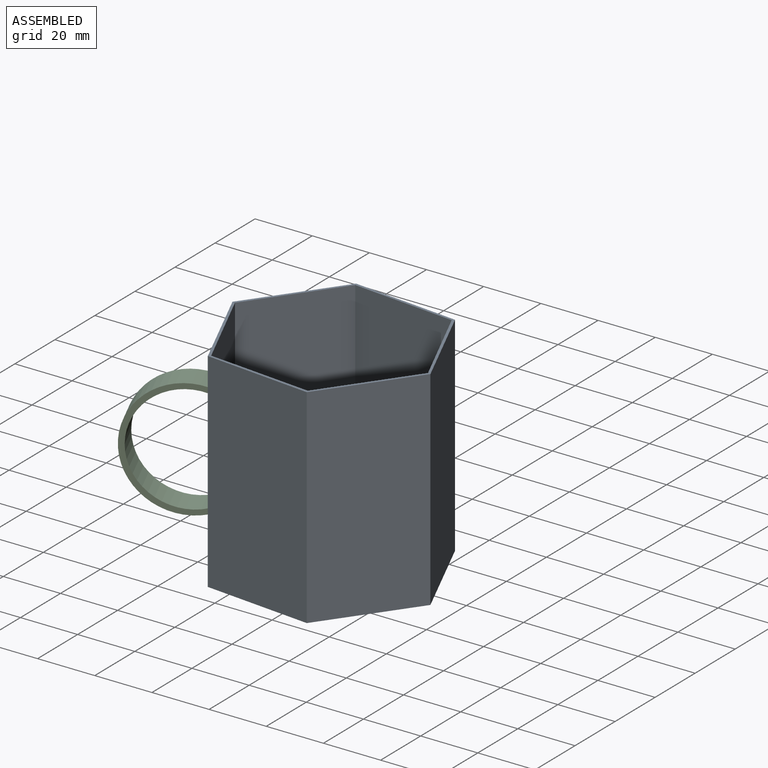
[diagram: assembled view]
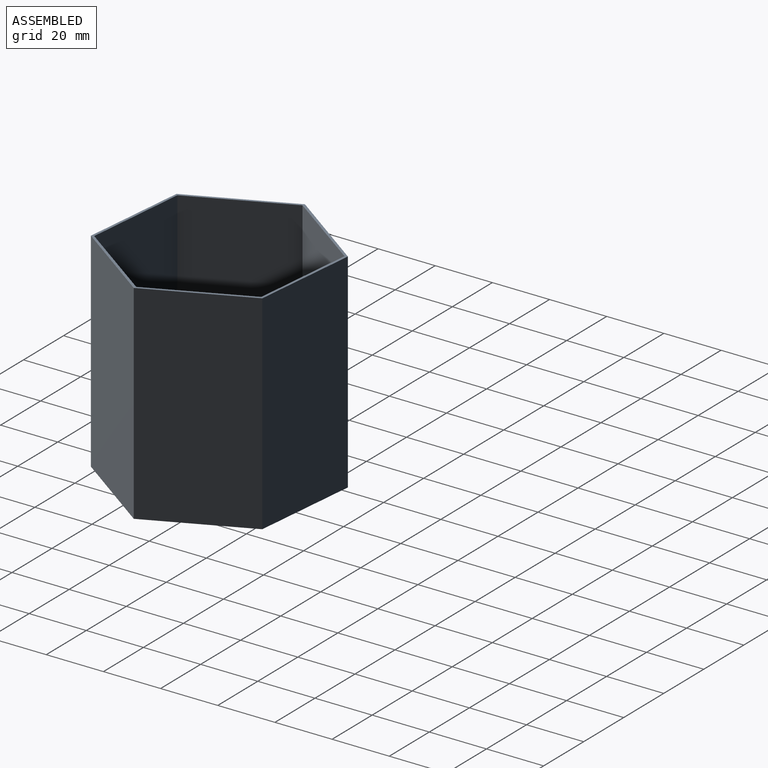
[diagram: assembled view, second angle]
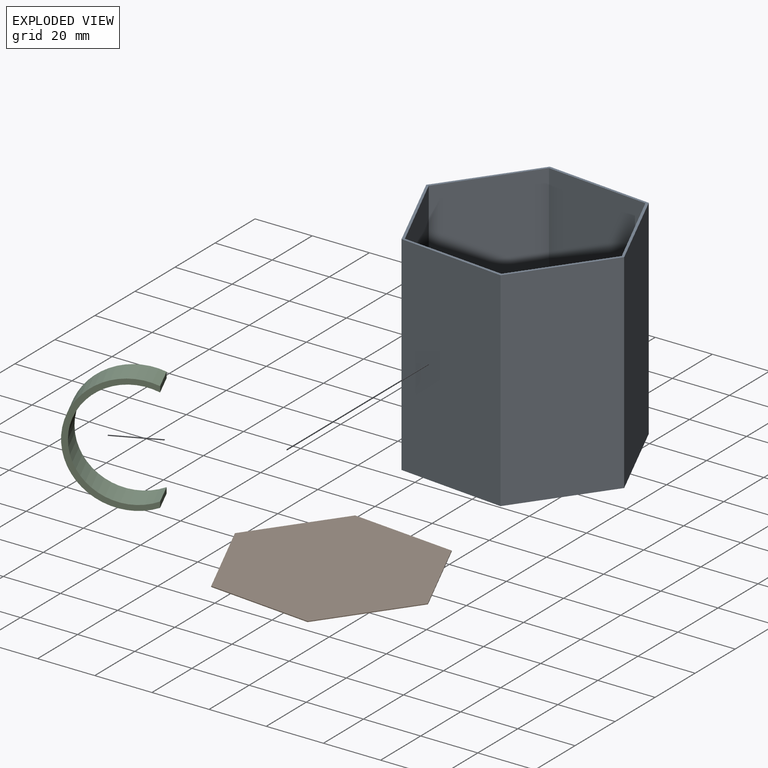
[diagram: exploded view]
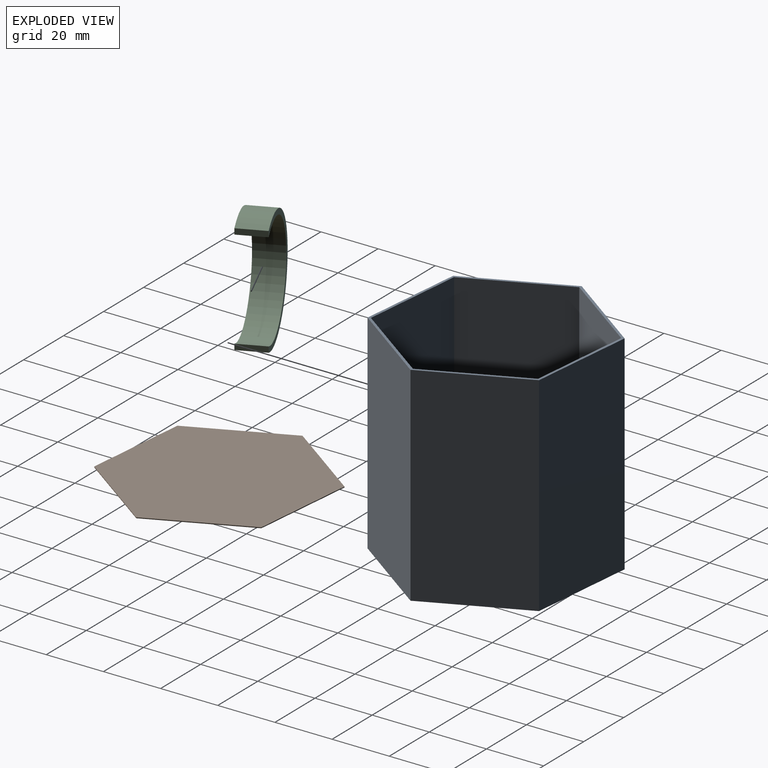
[diagram: exploded view, second angle]
ASSEMBLY  parts=3 mates=2
PART A: 24 faces, bbox 74.6x68.4x73 mm
  f0: plane 73x30.39mm, normal (0.81,-0.59,0), area 2737.5mm2, adj f1,f11,f12,f13
  f1: plane 73x34.22mm, normal (0.91,0.41,0), area 2737.5mm2, adj f0,f2,f12,f13
  f2: plane 73x37.3mm, normal (0.1,0.99,0), area 2737.5mm2, adj f1,f3,f12,f13
  f3: plane 73x30.39mm, normal (-0.81,0.59,0), area 2737.5mm2, adj f2,f4,f12,f13
  f4: plane 73x34.22mm, normal (-0.91,-0.41,0), area 2717.5mm2, adj f3,f11,f12,f13,f14,f15,f16,f17
  f5: plane 73x33.28mm, normal (-0.91,-0.41,0), area 2664.6mm2, adj f6,f10,f12,f13
  f6: plane 73x29.62mm, normal (-0.81,0.58,0), area 2664.6mm2, adj f5,f7,f12,f13
  f7: plane 73x36.32mm, normal (0.1,0.99,0), area 2664.6mm2, adj f6,f8,f12,f13
  f8: plane 73x33.28mm, normal (0.91,0.41,0), area 2664.6mm2, adj f7,f9,f12,f13
  f9: plane 73x29.62mm, normal (0.81,-0.58,0), area 2664.6mm2, adj f8,f10,f12,f13
  f10: plane 73x36.32mm, normal (-0.1,-0.99,0), area 2664.6mm2, adj f5,f9,f12,f13
  f11: plane 73x37.3mm, normal (-0.1,-0.99,0), area 2737.5mm2, adj f0,f4,f12,f13
  f12: plane 74.61x68.44mm, normal (0,0,1), area 191.9mm2, adj f0,f1,f2,f3,f4,f5,f6,f7
  f13: plane 74.61x68.44mm, normal (0,0,-1), area 191.9mm2, adj f0,f1,f2,f3,f4,f5,f6,f7
  f14: plane 2x0.01mm, normal (0.41,-0.91,0), area 0mm2, adj f4,f15,f17,f18
  f15: plane 4.57x2.05mm, normal (0,0,1), area 0.1mm2, adj f4,f14,f16,f18
  f16: plane 2x0.01mm, normal (-0.41,0.91,0), area 0mm2, adj f4,f15,f17,f18
  f17: plane 4.57x2.05mm, normal (0,0,-1), area 0.1mm2, adj f4,f14,f16,f18
  f18: plane 4.56x2.05mm, normal (-0.91,-0.41,0), area 10mm2, adj f14,f15,f16,f17
  f19: plane 2x0.01mm, normal (0.41,-0.91,0), area 0mm2, adj f4,f20,f22,f23
  f20: plane 4.57x2.05mm, normal (0,0,1), area 0.1mm2, adj f4,f19,f21,f23
  f21: plane 2x0.01mm, normal (-0.41,0.91,0), area 0mm2, adj f4,f20,f22,f23
  f22: plane 4.57x2.05mm, normal (0,0,-1), area 0.1mm2, adj f4,f19,f21,f23
  f23: plane 4.56x2.05mm, normal (-0.91,-0.41,0), area 10mm2, adj f19,f20,f21,f22
PART B: 8 faces, bbox 72.6x66.6x0.3 mm
  f0: plane 33.28x14.99mm, normal (0.91,0.41,0), area 11mm2, adj f1,f5,f6,f7
  f1: plane 29.62x21.33mm, normal (0.81,-0.58,0), area 11mm2, adj f0,f2,f6,f7
  f2: plane 36.32x3.66mm, normal (-0.1,-0.99,0), area 11mm2, adj f1,f3,f6,f7
  f3: plane 33.28x14.99mm, normal (-0.91,-0.41,0), area 11mm2, adj f2,f4,f6,f7
  f4: plane 29.62x21.33mm, normal (-0.81,0.58,0), area 11mm2, adj f3,f5,f6,f7
  f5: plane 36.32x3.66mm, normal (0.1,0.99,0), area 11mm2, adj f0,f4,f6,f7
  f6: plane 72.64x66.57mm, normal (0,0,-1), area 3461.7mm2, adj f0,f1,f2,f3,f4,f5
  f7: plane 72.64x66.57mm, normal (0,0,1), area 3461.7mm2, adj f0,f1,f2,f3,f4,f5
PART C: 6 faces, bbox 28.9x10x41.7 mm
  f0: cylinder r=18.98mm len=37.96mm, axis (0,1,0), area 759.6mm2, adj f1,f3,f4,f5
  f1: plane 10x2mm, normal (1,0,0), area 20mm2, adj f0,f2,f4,f5
  f2: cylinder r=20.86mm len=41.72mm, axis (0,1,0), area 820.3mm2, adj f1,f3,f4,f5
  f3: plane 10x2mm, normal (1,0,0), area 20mm2, adj f0,f2,f4,f5
  f4: plane 41.72x28.9mm, normal (0,-1,0), area 152.9mm2, adj f0,f1,f2,f3
  f5: plane 41.72x28.9mm, normal (0,1,0), area 152.9mm2, adj f0,f1,f2,f3
PLACE A t=(-23.22,-105.71,-65.99)mm fixed
PLACE B rot(axis=(0.99,-0.1,0),180deg) t=(-23.22,-105.71,-66.14)mm
PLACE C rot(axis=(0,0,1),24.1deg) t=(-54.9,-114.43,-48.74)mm
MATE fastened B.f5 <-> A.f7  axis (-0.1,-0.99,0) through (-26.4,-137.16,-65.99)mm
MATE fastened A.f4 <-> C.f3  axis (-0.91,-0.41,0) through (-52.86,-118.99,-47.74)mm
